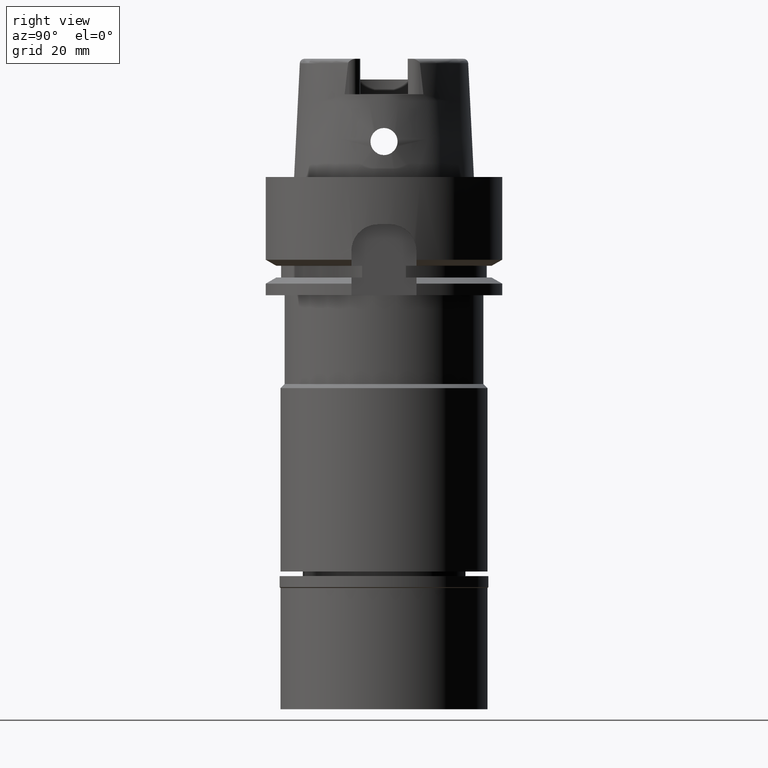
[diagram: clean part render]
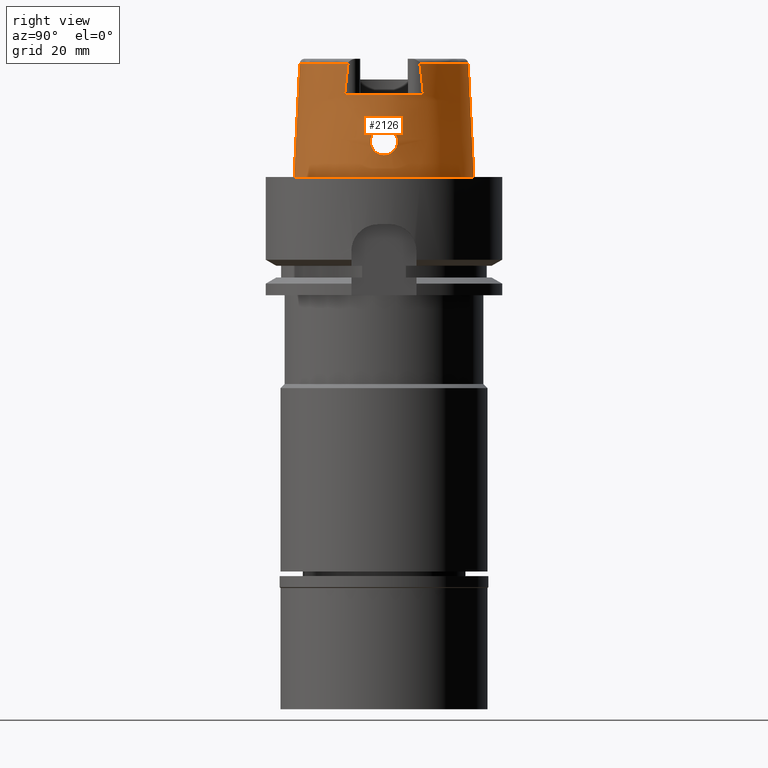
[diagram: same view with one face highlighted and labeled with its STEP entity id]
A machine part, right view. The second image highlights one B-rep face of the part: STEP entity #2126.
In plain terms, the highlighted conical surface has half-angle 2.862 deg.
Its self-contained STEP definition (entity closure, byte-faithful):
#4 = DIRECTION ( 'NONE',  ( 0.0000000000000000000, 0.0000000000000000000, 1.000000000000000000 ) ) ;
#14 = CARTESIAN_POINT ( 'NONE',  ( 14.95159781191035187, -1.187864067889359720, 4.029032692293940343 ) ) ;
#24 = CARTESIAN_POINT ( 'NONE',  ( 14.74751832821035613, 1.307916404317100989, 7.891956802519297653 ) ) ;
#29 = CARTESIAN_POINT ( 'NONE',  ( 14.81277615097072342, 2.042027729692651228, 4.940961349502483557 ) ) ;
#44 = DIRECTION ( 'NONE',  ( 0.0000000000000000000, 0.0000000000000000000, -1.000000000000000000 ) ) ;
#55 = CARTESIAN_POINT ( 'NONE',  ( 14.87689050640295996, 1.723620820242736773, 4.475252194871258027 ) ) ;
#66 = CARTESIAN_POINT ( 'NONE',  ( 14.91233845828381277, -1.506209392873531616, 4.253306372564925830 ) ) ;
#74 = B_SPLINE_CURVE_WITH_KNOTS ( 'NONE', 3,
 ( #244, #4493, #1905, #2389 ),
 .UNSPECIFIED., .F., .F.,
 ( 4, 4 ),
 ( 0.0000000000000000000, 1.000000000000000000 ),
 .UNSPECIFIED. ) ;
#87 = CARTESIAN_POINT ( 'NONE',  ( 14.72736680772677076, 1.656232558571158808, 7.595965254541103384 ) ) ;
#105 = AXIS2_PLACEMENT_3D ( 'NONE', #878, #44, #3081 ) ;
#116 = CARTESIAN_POINT ( 'NONE',  ( 0.0000000000000000000, -14.23797715755999782, 19.23995141520000018 ) ) ;
#137 = VERTEX_POINT ( 'NONE', #3080 ) ;
#190 = EDGE_CURVE ( 'NONE', #3862, #2989, #750, .T. ) ;
#244 = CARTESIAN_POINT ( 'NONE',  ( 12.88000642478999858, 6.068395837171999929, 19.23995141520000018 ) ) ;
#245 = LINE ( 'NONE', #3138, #1228 ) ;
#260 = CARTESIAN_POINT ( 'NONE',  ( 14.78454475432218551, -2.153043361746019180, 5.190607730115768703 ) ) ;
#285 = CARTESIAN_POINT ( 'NONE',  ( 14.70308859684086400, 2.132541063065697351, 6.861604285916752310 ) ) ;
#286 = CARTESIAN_POINT ( 'NONE',  ( 14.83222040200381464, -1.955479669527059983, 4.788852224059331419 ) ) ;
#310 = CARTESIAN_POINT ( 'NONE',  ( 14.70278127406560031, -2.228557303484552055, 6.588166007217148845 ) ) ;
#327 = DIRECTION ( 'NONE',  ( 0.9046212760392207120, -0.4262163147243098749, 0.0000000000000000000 ) ) ;
#338 = CARTESIAN_POINT ( 'NONE',  ( 14.74236931780755810, -1.402783291538963084, 7.824252342692303408 ) ) ;
#363 = CARTESIAN_POINT ( 'NONE',  ( 0.0000000000000000000, 15.20000663301000010, 0.0000000000000000000 ) ) ;
#366 = CARTESIAN_POINT ( 'NONE',  ( 14.97820405271757949, -0.9073709222876237268, 3.886532192602499158 ) ) ;
#383 = CARTESIAN_POINT ( 'NONE',  ( 14.77587679001949539, 2.186478945650338179, 5.267594666134984394 ) ) ;
#442 = CARTESIAN_POINT ( 'NONE',  ( 15.00367744364294964, 0.5085436132745476678, 3.755686639365965807 ) ) ;
#452 = ORIENTED_EDGE ( 'NONE', *, *, #4840, .F. ) ;
#461 = CARTESIAN_POINT ( 'NONE',  ( 14.74853616676068846, 1.288891261874556493, 7.904935887344001877 ) ) ;
#468 = CARTESIAN_POINT ( 'NONE',  ( 14.72502069329719987, 2.299243304022201340, 5.931213789070854503 ) ) ;
#497 = CARTESIAN_POINT ( 'NONE',  ( 14.72858124996356999, 1.635993355480040323, 7.616644405018121233 ) ) ;
#541 = VERTEX_POINT ( 'NONE', #644 ) ;
#552 = DIRECTION ( 'NONE',  ( 0.0000000000000000000, 1.000000000000000000, 0.0000000000000000000 ) ) ;
#640 = CARTESIAN_POINT ( 'NONE',  ( 12.88000000001000167, -6.659963896840999986, 14.00000000000000000 ) ) ;
#644 = CARTESIAN_POINT ( 'NONE',  ( 0.0000000000000000000, -15.20000663301000010, 1.136868377215999875E-13 ) ) ;
#649 = CARTESIAN_POINT ( 'NONE',  ( 14.77405847321146481, -0.6932189996478751448, 8.193394195744213349 ) ) ;
#673 = CARTESIAN_POINT ( 'NONE',  ( 14.73736555996772957, -1.490226321588004055, 7.752326996783448720 ) ) ;
#690 = AXIS2_PLACEMENT_3D ( 'NONE', #2854, #4917, #1244 ) ;
#699 = CARTESIAN_POINT ( 'NONE',  ( 14.70330673349290862, -2.122548192337450512, 6.885935675944041989 ) ) ;
#726 = CARTESIAN_POINT ( 'NONE',  ( 14.76160638078535214, -2.228446535680765450, 5.425422892990550139 ) ) ;
#748 = CARTESIAN_POINT ( 'NONE',  ( 14.82875256586594936, -1.971575649168873845, 4.815389322742110956 ) ) ;
#750 = LINE ( 'NONE', #3234, #2374 ) ;
#779 = CARTESIAN_POINT ( 'NONE',  ( 14.74945710056445769, -1.271558491804543056, 7.916566728944068210 ) ) ;
#801 = CARTESIAN_POINT ( 'NONE',  ( 14.80665070072230627, 2.067995376409636155, 4.992039432691788292 ) ) ;
#823 = CARTESIAN_POINT ( 'NONE',  ( 14.74812708442671294, 1.296547176084208663, 7.899733360241834035 ) ) ;
#829 = CARTESIAN_POINT ( 'NONE',  ( 14.70880299172023165, 2.286013724603620290, 6.294498830151221469 ) ) ;
#853 = EDGE_LOOP ( 'NONE', ( #1096, #452 ) ) ;
#856 = CARTESIAN_POINT ( 'NONE',  ( 15.00013898931886835, 0.5818394996962065191, 3.773510061688900130 ) ) ;
#878 = CARTESIAN_POINT ( 'NONE',  ( 0.0000000000000000000, 1.342457523729000028E-14, 9.619975707600000092 ) ) ;
#907 = CARTESIAN_POINT ( 'NONE',  ( 14.76642051090291829, 0.9082543105190635790, 8.113098558533105020 ) ) ;
#915 = CARTESIAN_POINT ( 'NONE',  ( 14.72817366909504422, 1.642780986028380408, 7.609758974836132062 ) ) ;
#965 = DIRECTION ( 'NONE',  ( 0.0000000000000000000, 0.0000000000000000000, -1.000000000000000000 ) ) ;
#991 = VERTEX_POINT ( 'NONE', #116 ) ;
#992 = CARTESIAN_POINT ( 'NONE',  ( 0.0000000000000000000, 1.459778984583999657E-14, 19.23995141520000018 ) ) ;
#1022 = EDGE_CURVE ( 'NONE', #137, #1546, #2186, .T. ) ;
#1088 = CARTESIAN_POINT ( 'NONE',  ( 14.75001193500613716, -1.261041565009231036, 7.923510389929881548 ) ) ;
#1096 = ORIENTED_EDGE ( 'NONE', *, *, #2726, .F. ) ;
#1113 = CARTESIAN_POINT ( 'NONE',  ( 14.72949314430344181, -1.621130342554049975, 7.631578534187770657 ) ) ;
#1139 = CARTESIAN_POINT ( 'NONE',  ( 14.87734879225924622, -1.718973516896574072, 4.471067207144236555 ) ) ;
#1159 = ORIENTED_EDGE ( 'NONE', *, *, #1802, .T. ) ;
#1165 = CARTESIAN_POINT ( 'NONE',  ( 14.71779217174672638, -2.299087024094990550, 6.074411375512898559 ) ) ;
#1190 = CARTESIAN_POINT ( 'NONE',  ( 14.73069332387527197, -1.601752197339136874, 7.650599564671837882 ) ) ;
#1210 = CARTESIAN_POINT ( 'NONE',  ( 14.91331261863802915, 1.490111987784595415, 4.247452989465248407 ) ) ;
#1228 = VECTOR ( 'NONE', #3492, 1000.000000000000227 ) ;
#1229 = CARTESIAN_POINT ( 'NONE',  ( 12.88000642478999858, 6.068395837171999929, 19.23995141520000018 ) ) ;
#1236 = CARTESIAN_POINT ( 'NONE',  ( 14.76441233825287647, 0.9572221686004802610, 8.091416330804094059 ) ) ;
#1242 = CARTESIAN_POINT ( 'NONE',  ( 14.98380681107930279, 0.8363154628546727309, 3.857415049180454858 ) ) ;
#1244 = DIRECTION ( 'NONE',  ( 0.8882768779220027167, 0.4593083802296007434, 0.0000000000000000000 ) ) ;
#1269 = CARTESIAN_POINT ( 'NONE',  ( 14.71340754095104764, 1.895742809558945696, 7.304524220201870754 ) ) ;
#1307 = AXIS2_PLACEMENT_3D ( 'NONE', #5102, #4, #1656 ) ;
#1309 = CARTESIAN_POINT ( 'NONE',  ( 15.01500049748000620, -0.2871287506931364253, 3.699999999999998845 ) ) ;
#1329 = CARTESIAN_POINT ( 'NONE',  ( 14.98158108246924769, 0.8653348438459183001, 3.868978528466840761 ) ) ;
#1350 = CARTESIAN_POINT ( 'NONE',  ( 14.74146935868266084, 1.418211373030696221, 7.810931412595422785 ) ) ;
#1359 = CARTESIAN_POINT ( 'NONE',  ( 14.72039008570684615, 1.773838159947741744, 7.464641027593489575 ) ) ;
#1410 = ORIENTED_EDGE ( 'NONE', *, *, #3469, .T. ) ;
#1482 = CIRCLE ( 'NONE', #1307, 15.20000663301000010 ) ;
#1505 = CARTESIAN_POINT ( 'NONE',  ( 14.73486358018056919, -1.533062476184660072, 7.715287958186024753 ) ) ;
#1509 = AXIS2_PLACEMENT_3D ( 'NONE', #992, #965, #552 ) ;
#1532 = CARTESIAN_POINT ( 'NONE',  ( 14.70935409292397367, -2.282297410087690714, 6.294200053182678722 ) ) ;
#1546 = VERTEX_POINT ( 'NONE', #2807 ) ;
#1547 = DIRECTION ( 'NONE',  ( 0.0000000000000000000, 0.0000000000000000000, -1.000000000000000000 ) ) ;
#1555 = CARTESIAN_POINT ( 'NONE',  ( 14.99376977153552915, 0.6912980481391540755, 3.806018306630426284 ) ) ;
#1556 = CARTESIAN_POINT ( 'NONE',  ( 14.85788908783029605, -1.827877025819850232, 4.601933192779965154 ) ) ;
#1583 = CARTESIAN_POINT ( 'NONE',  ( 14.75372239674802977, -1.188815812010178163, 7.969044752825855227 ) ) ;
#1611 = CARTESIAN_POINT ( 'NONE',  ( 14.72153735385490236, -1.748226725545042548, 7.504128024354805859 ) ) ;
#1656 = DIRECTION ( 'NONE',  ( 0.0000000000000000000, -1.000000000000000000, 0.0000000000000000000 ) ) ;
#1665 = CARTESIAN_POINT ( 'NONE',  ( 14.97944125101479962, -0.8921746527740900268, 3.880072512450924549 ) ) ;
#1679 = CARTESIAN_POINT ( 'NONE',  ( 14.74613196803109894, 1.333648486405971889, 7.874014545323412051 ) ) ;
#1687 = CARTESIAN_POINT ( 'NONE',  ( 14.98583036464588325, 0.8092569102176475626, 3.846919130171225998 ) ) ;
#1692 = EDGE_CURVE ( 'NONE', #1546, #991, #5300, .T. ) ;
#1697 = CARTESIAN_POINT ( 'NONE',  ( 15.01500049747999910, 0.0000000000000000000, 3.700000000000000178 ) ) ;
#1713 = CARTESIAN_POINT ( 'NONE',  ( 15.01216973402073762, 0.2889093150147514777, 3.713350119281751738 ) ) ;
#1741 = CARTESIAN_POINT ( 'NONE',  ( 14.83355990642575151, 1.949053821829503708, 4.776618348241496115 ) ) ;
#1751 = CARTESIAN_POINT ( 'NONE',  ( 15.00354984539767322, -0.5879194841293168272, 3.754523910294303324 ) ) ;
#1764 = CARTESIAN_POINT ( 'NONE',  ( 14.76685564974483533, 0.8972882147890098858, 8.117755752641397038 ) ) ;
#1772 = CARTESIAN_POINT ( 'NONE',  ( 14.72887405899188629, 1.631119956312548025, 7.621557771143972815 ) ) ;
#1802 = EDGE_CURVE ( 'NONE', #3862, #2306, #3181, .T. ) ;
#1804 = ORIENTED_EDGE ( 'NONE', *, *, #3909, .T. ) ;
#1818 = ORIENTED_EDGE ( 'NONE', *, *, #1961, .T. ) ;
#1830 = VERTEX_POINT ( 'NONE', #5157 ) ;
#1840 = CARTESIAN_POINT ( 'NONE',  ( 14.78353495001219464, -0.2839901100707556969, 8.287368063086679726 ) ) ;
#1871 = CARTESIAN_POINT ( 'NONE',  ( 15.01500049747999910, 0.0000000000000000000, 3.700000000000000178 ) ) ;
#1905 = CARTESIAN_POINT ( 'NONE',  ( 12.88001670702532486, 6.461541541087054696, 15.82237501699527904 ) ) ;
#1922 = CARTESIAN_POINT ( 'NONE',  ( 14.71959376989578061, -2.299974521213192791, 6.035933924429983222 ) ) ;
#1954 = CARTESIAN_POINT ( 'NONE',  ( 14.79809721017969970, -2.102711761455683170, 5.065839075425421001 ) ) ;
#1961 = EDGE_CURVE ( 'NONE', #2306, #4156, #74, .T. ) ;
#1977 = CARTESIAN_POINT ( 'NONE',  ( 14.97223539196251707, 0.9839929119239221311, 3.917615453083567179 ) ) ;
#1978 = CARTESIAN_POINT ( 'NONE',  ( 14.83580892831244213, -1.938393915680545421, 4.761959704945465610 ) ) ;
#2001 = CARTESIAN_POINT ( 'NONE',  ( 14.72985924655684364, -1.615240559001779763, 7.637402504313230089 ) ) ;
#2030 = CARTESIAN_POINT ( 'NONE',  ( 14.70353454613429101, -2.113388270241584710, 6.907556622532162294 ) ) ;
#2071 = CARTESIAN_POINT ( 'NONE',  ( 14.70318061717213709, 2.128127486359741027, 6.872428827122357475 ) ) ;
#2079 = CARTESIAN_POINT ( 'NONE',  ( 14.89037633737181565, -1.641091913029274707, 4.388507899635789578 ) ) ;
#2099 = CARTESIAN_POINT ( 'NONE',  ( 14.88546964351503199, 1.672501550665707271, 4.419347234762968313 ) ) ;
#2108 = CARTESIAN_POINT ( 'NONE',  ( 14.96739925460966525, -1.030588670757251357, 3.943514719977009975 ) ) ;
#2120 = CARTESIAN_POINT ( 'NONE',  ( 14.74882774769819882, 1.283419938159608087, 7.908622783263433931 ) ) ;
#2126 = ADVANCED_FACE ( 'NONE', ( #3848, #4326 ), #2469, .T. ) ;
#2130 = CARTESIAN_POINT ( 'NONE',  ( 14.89898486874967176, 1.586769968314259316, 4.334982118419299368 ) ) ;
#2152 = CARTESIAN_POINT ( 'NONE',  ( 14.72321557365133593, 2.300011326135644296, 5.964289681596360637 ) ) ;
#2161 = CARTESIAN_POINT ( 'NONE',  ( 14.89131456766338424, -1.635366561423474252, 4.382689932100723773 ) ) ;
#2170 = EDGE_LOOP ( 'NONE', ( #3736, #5301, #1804, #2668, #4938, #1159, #1818, #1410 ) ) ;
#2173 = CARTESIAN_POINT ( 'NONE',  ( 14.76714247374605371, 0.8900169135928871489, 8.120821883554476983 ) ) ;
#2181 = CARTESIAN_POINT ( 'NONE',  ( 14.72899528445914896, 1.629103054710999920, 7.623583457873813529 ) ) ;
#2186 = B_SPLINE_CURVE_WITH_KNOTS ( 'NONE', 3,
 ( #640, #4751, #2235, #2312 ),
 .UNSPECIFIED., .F., .F.,
 ( 4, 4 ),
 ( 0.0000000000000000000, 1.000000000000000000 ),
 .UNSPECIFIED. ) ;
#2235 = CARTESIAN_POINT ( 'NONE',  ( 12.87998480906792231, -6.264498791881766060, 17.56875189347443467 ) ) ;
#2306 = VERTEX_POINT ( 'NONE', #1229 ) ;
#2312 = CARTESIAN_POINT ( 'NONE',  ( 12.87999235482999794, -6.068467390490999591, 19.23976282670000160 ) ) ;
#2321 = CARTESIAN_POINT ( 'NONE',  ( 14.77228163381133719, -0.7495660700917883279, 8.175071908086145811 ) ) ;
#2348 = CARTESIAN_POINT ( 'NONE',  ( 14.76763779849073011, -0.8773527995547368841, 8.126092011479387978 ) ) ;
#2374 = VECTOR ( 'NONE', #3671, 1000.000000000000227 ) ;
#2375 = CARTESIAN_POINT ( 'NONE',  ( 14.70330494621231310, 2.224522370447009845, 6.589338689569594010 ) ) ;
#2376 = CARTESIAN_POINT ( 'NONE',  ( 14.82197781381792545, -2.002512396162962727, 4.867923990409698476 ) ) ;
#2389 = CARTESIAN_POINT ( 'NONE',  ( 12.88000000001000167, 6.659963896840999986, 14.00000000000000000 ) ) ;
#2401 = CARTESIAN_POINT ( 'NONE',  ( 14.72824766916687445, -2.300098885217962685, 5.864612257955919006 ) ) ;
#2424 = CARTESIAN_POINT ( 'NONE',  ( 14.70541249631440373, -2.056173621691748554, 7.031210576314717464 ) ) ;
#2453 = CARTESIAN_POINT ( 'NONE',  ( 14.70744202753588858, -2.007269269526447353, 7.125100413559565027 ) ) ;
#2469 = CONICAL_SURFACE ( 'NONE', #105, 14.71899189528999941, 0.04996004983832824653 ) ;
#2474 = CARTESIAN_POINT ( 'NONE',  ( 14.91783195775908055, 1.457720642843634451, 4.220463533993310534 ) ) ;
#2500 = CARTESIAN_POINT ( 'NONE',  ( 14.70429935291649670, 2.078340243811617416, 6.992732551594979640 ) ) ;
#2520 = CARTESIAN_POINT ( 'NONE',  ( 14.76724138996332059, 0.8875007862261394820, 8.121878463802751469 ) ) ;
#2530 = CARTESIAN_POINT ( 'NONE',  ( 14.70255809053433182, 2.173663127328616884, 6.753509407155230626 ) ) ;
#2551 = CARTESIAN_POINT ( 'NONE',  ( 14.74500206672123781, 1.354361789306116393, 7.859025274793162374 ) ) ;
#2555 = AXIS2_PLACEMENT_3D ( 'NONE', #3175, #1547, #327 ) ;
#2559 = CARTESIAN_POINT ( 'NONE',  ( 14.99031977856956033, 0.7459051346538461136, 3.823714766512996910 ) ) ;
#2578 = CARTESIAN_POINT ( 'NONE',  ( 14.73772851897967051, 1.484207111991292072, 7.757928772046327914 ) ) ;
#2586 = CARTESIAN_POINT ( 'NONE',  ( 14.72899154001481037, 1.629165348209785424, 7.623520947876661680 ) ) ;
#2593 = CARTESIAN_POINT ( 'NONE',  ( 14.88820275661114323, -1.654289864141546884, 4.402059293357578618 ) ) ;
#2642 = VERTEX_POINT ( 'NONE', #1871 ) ;
#2653 = CARTESIAN_POINT ( 'NONE',  ( 14.78499286952000169, -0.1390346422448712205, 8.300000000000002487 ) ) ;
#2668 = ORIENTED_EDGE ( 'NONE', *, *, #2704, .T. ) ;
#2704 = EDGE_CURVE ( 'NONE', #541, #2989, #1482, .T. ) ;
#2726 = EDGE_CURVE ( 'NONE', #2642, #1830, #4758, .T. ) ;
#2742 = CARTESIAN_POINT ( 'NONE',  ( 14.77916119148878238, -0.5059808159058578614, 8.244918522707889608 ) ) ;
#2768 = CARTESIAN_POINT ( 'NONE',  ( 14.78755701455979477, -2.142070933123758625, 5.162363661827093608 ) ) ;
#2793 = CARTESIAN_POINT ( 'NONE',  ( 14.75514735598933491, -2.246245530244911137, 5.499999097871387299 ) ) ;
#2807 = CARTESIAN_POINT ( 'NONE',  ( 12.87999235482999794, -6.068467390490999591, 19.23976282670000160 ) ) ;
#2816 = CARTESIAN_POINT ( 'NONE',  ( 14.83822809922280683, -1.926778122157195794, 4.743958275970711291 ) ) ;
#2841 = CARTESIAN_POINT ( 'NONE',  ( 14.75798617273542490, -1.101452471891670282, 8.019461671074509468 ) ) ;
#2854 = CARTESIAN_POINT ( 'NONE',  ( 0.0000000000000000000, 1.342457523729000028E-14, 14.00000000000000000 ) ) ;
#2867 = CARTESIAN_POINT ( 'NONE',  ( 14.70379910513145028, -2.103470269027626127, 6.930539206622420068 ) ) ;
#2887 = CARTESIAN_POINT ( 'NONE',  ( 14.85070685811105307, 1.866402303876733004, 4.653888598097771556 ) ) ;
#2913 = CARTESIAN_POINT ( 'NONE',  ( 14.78499286952000347, 0.2785772059782061216, 8.300000000000004263 ) ) ;
#2919 = CARTESIAN_POINT ( 'NONE',  ( 14.70295626629549623, 2.139703767922909172, 6.843659360588138618 ) ) ;
#2944 = CARTESIAN_POINT ( 'NONE',  ( 14.90626587690420735, 1.538535333622815360, 4.290212668995776468 ) ) ;
#2975 = CARTESIAN_POINT ( 'NONE',  ( 14.76155486097469449, 2.230851279048172930, 5.420146973557837811 ) ) ;
#2989 = VERTEX_POINT ( 'NONE', #363 ) ;
#3010 = CARTESIAN_POINT ( 'NONE',  ( 14.72912714456582428, 2.296040461768006136, 5.860538493378713021 ) ) ;
#3029 = CARTESIAN_POINT ( 'NONE',  ( 14.78499286951999991, -6.884507511411997731E-14, 8.300000000000000711 ) ) ;
#3036 = CARTESIAN_POINT ( 'NONE',  ( 14.72875681680386428, 1.633071088884591626, 7.619592768472294608 ) ) ;
#3080 = CARTESIAN_POINT ( 'NONE',  ( 12.88000000001000167, -6.659963896840999986, 14.00000000000000000 ) ) ;
#3081 = DIRECTION ( 'NONE',  ( 0.0000000000000000000, -1.000000000000000000, 0.0000000000000000000 ) ) ;
#3138 = CARTESIAN_POINT ( 'NONE',  ( 0.0000000000000000000, -14.23797715755999782, 19.23995141520000018 ) ) ;
#3175 = CARTESIAN_POINT ( 'NONE',  ( 0.0000000000000000000, 1.459778984583999657E-14, 19.23995141520000018 ) ) ;
#3181 = CIRCLE ( 'NONE', #1509, 14.23797715755999782 ) ;
#3186 = CARTESIAN_POINT ( 'NONE',  ( 14.70730606536179863, -2.271634381914195533, 6.367802884226502869 ) ) ;
#3205 = CARTESIAN_POINT ( 'NONE',  ( 14.71564347146195573, -1.847804553820137752, 7.377784150090652915 ) ) ;
#3228 = CARTESIAN_POINT ( 'NONE',  ( 14.93882225505085515, 1.296112023564907068, 4.098492430789756114 ) ) ;
#3229 = CARTESIAN_POINT ( 'NONE',  ( 14.77219415750567855, -2.195324595902393039, 5.312920585232150827 ) ) ;
#3234 = CARTESIAN_POINT ( 'NONE',  ( 0.0000000000000000000, 14.23797715755999782, 19.23995141520000018 ) ) ;
#3256 = CARTESIAN_POINT ( 'NONE',  ( 14.70919352844575911, -1.970693411085873592, 7.188290868366238762 ) ) ;
#3276 = CARTESIAN_POINT ( 'NONE',  ( 14.76821967643265232, -0.8622035868760629107, 8.132282952270406540 ) ) ;
#3324 = CARTESIAN_POINT ( 'NONE',  ( 15.01500049748000443, 0.1428645564732077822, 3.700000000000000178 ) ) ;
#3348 = CARTESIAN_POINT ( 'NONE',  ( 14.76098190591237191, 1.036408135029145638, 8.053602097202293919 ) ) ;
#3354 = CARTESIAN_POINT ( 'NONE',  ( 14.70267105431568133, 2.191566203081938724, 6.698922416595515017 ) ) ;
#3382 = CARTESIAN_POINT ( 'NONE',  ( 14.79473802212328160, 2.115256652901250423, 5.096610354832854739 ) ) ;
#3391 = CARTESIAN_POINT ( 'NONE',  ( 14.92957349338001194, -1.378452510460746350, 4.152623112702926278 ) ) ;
#3415 = CARTESIAN_POINT ( 'NONE',  ( 14.82514891412099800, 1.987953961328903896, 4.840776339112235149 ) ) ;
#3434 = CARTESIAN_POINT ( 'NONE',  ( 14.76241683520150083, 1.004035209737936141, 8.069565049198388351 ) ) ;
#3440 = CARTESIAN_POINT ( 'NONE',  ( 14.72275804984165859, 1.733513270563004971, 7.512657437547620276 ) ) ;
#3469 = EDGE_CURVE ( 'NONE', #4156, #137, #4306, .T. ) ;
#3492 = DIRECTION ( 'NONE',  ( 0.0000000000000000000, -0.04993926899656212642, -0.9987522562738413434 ) ) ;
#3508 = CARTESIAN_POINT ( 'NONE',  ( 14.78499286951999991, -6.884507511411997731E-14, 8.300000000000000711 ) ) ;
#3588 = CARTESIAN_POINT ( 'NONE',  ( 14.75096406798681059, -1.242812650638140282, 7.935338410785809593 ) ) ;
#3616 = CARTESIAN_POINT ( 'NONE',  ( 14.80541373048166420, -2.073811860073035085, 5.002507251742100536 ) ) ;
#3641 = CARTESIAN_POINT ( 'NONE',  ( 14.93085450901773292, 1.360657936284384251, 4.143818972700538339 ) ) ;
#3642 = CARTESIAN_POINT ( 'NONE',  ( 14.83961419960148120, -1.920061337968897330, 4.733724392170651996 ) ) ;
#3667 = CARTESIAN_POINT ( 'NONE',  ( 14.71323577996237830, -2.292914406950467221, 6.184125791907077563 ) ) ;
#3671 = DIRECTION ( 'NONE',  ( 0.0000000000000000000, 0.04993926899656212642, -0.9987522562738413434 ) ) ;
#3696 = CARTESIAN_POINT ( 'NONE',  ( 14.88494373444930297, -1.673961407728789208, 4.422508496978726278 ) ) ;
#3736 = ORIENTED_EDGE ( 'NONE', *, *, #1022, .T. ) ;
#3740 = CARTESIAN_POINT ( 'NONE',  ( 14.98243566002871852, 0.8543322368514190135, 3.864535119941170827 ) ) ;
#3751 = CARTESIAN_POINT ( 'NONE',  ( 14.95830121240146759, -1.124474588450421475, 3.992380573687578593 ) ) ;
#3763 = CARTESIAN_POINT ( 'NONE',  ( 14.75286591417289728, 1.207535211317185997, 7.959517585093020209 ) ) ;
#3803 = CARTESIAN_POINT ( 'NONE',  ( 14.90267557277423727, 1.562705741451802632, 4.312161193900186262 ) ) ;
#3837 = CARTESIAN_POINT ( 'NONE',  ( 14.97993287547786245, -0.8860733461274853395, 3.877508646661071978 ) ) ;
#3848 = FACE_OUTER_BOUND ( 'NONE', #2170, .T. ) ;
#3857 = CARTESIAN_POINT ( 'NONE',  ( 14.73066033777437056, 1.603127183154393398, 7.650953847107430761 ) ) ;
#3862 = VERTEX_POINT ( 'NONE', #4387 ) ;
#3876 = CARTESIAN_POINT ( 'NONE',  ( 14.75636333628038521, 1.136603006297001617, 8.000956568751460551 ) ) ;
#3909 = EDGE_CURVE ( 'NONE', #991, #541, #245, .T. ) ;
#4031 = CARTESIAN_POINT ( 'NONE',  ( 14.71466461659102443, -2.295557711173062287, 6.147488954981620068 ) ) ;
#4060 = CARTESIAN_POINT ( 'NONE',  ( 14.73840912674189596, 2.283631429915606859, 5.716681378051133855 ) ) ;
#4061 = CARTESIAN_POINT ( 'NONE',  ( 14.76260058459468105, -1.001226412230063811, 8.072012940730376229 ) ) ;
#4082 = CARTESIAN_POINT ( 'NONE',  ( 14.78958392220834739, -2.134613141795620006, 5.143536776951375344 ) ) ;
#4108 = CARTESIAN_POINT ( 'NONE',  ( 14.87085502956068517, -1.755997229910595037, 4.514097905887158646 ) ) ;
#4139 = CARTESIAN_POINT ( 'NONE',  ( 14.73194442724450148, -1.581397845210991582, 7.670270657002334680 ) ) ;
#4156 = VERTEX_POINT ( 'NONE', #5096 ) ;
#4160 = CARTESIAN_POINT ( 'NONE',  ( 14.73133309586282991, 2.293605021918840858, 5.824824400274982494 ) ) ;
#4182 = CARTESIAN_POINT ( 'NONE',  ( 14.70697124783491105, 2.017175027640421892, 7.115124151032011568 ) ) ;
#4206 = CARTESIAN_POINT ( 'NONE',  ( 14.73564996746377176, 1.519598872248284938, 7.726915055850627212 ) ) ;
#4215 = CARTESIAN_POINT ( 'NONE',  ( 14.71595771377951856, 1.850319022189710783, 7.368583262249874366 ) ) ;
#4234 = B_SPLINE_CURVE_WITH_KNOTS ( 'NONE', 3,
 ( #3508, #2653, #1840, #2742, #4427, #649, #2321, #4452, #4972, #3276, #5362, #2348, #4507, #4061, #2841, #5314, #1583, #4871, #3588, #1088, #779, #4925, #338, #673, #1505, #4139, #1190, #2001, #1113, #1611, #3205, #3256, #2453, #2424, #4951, #2867, #2030, #4896, #699, #4556, #310, #3186, #1532, #3667, #4031, #1165, #1922, #2401, #5282, #2793, #726, #3229, #5388, #260, #2768, #4082, #4526, #1954, #3616, #4480, #2376, #748, #286, #1978, #2816, #3642, #5334, #1556, #4108, #1139, #3696, #2593, #2079, #2161, #66, #3391, #14, #3751, #2108, #5438, #5082, #366, #1665, #3837, #1751, #1309, #1697 ),
 .UNSPECIFIED., .F., .F.,
 ( 4, 2, 2, 1, 1, 1, 2, 2, 2, 2, 1, 2, 2, 2, 1, 1, 2, 2, 2, 2, 1, 1, 2, 2, 2, 2, 2, 2, 2, 2, 1, 1, 2, 2, 2, 2, 1, 2, 2, 2, 1, 1, 2, 2, 2, 2, 1, 1, 2, 2, 4 ),
 ( 0.0000000000000000000, 0.06249999999999039657, 0.09374999999998562261, 0.1093749999999833328, 0.1171874999999823058, 0.1210937499999818062, 0.1230468749999817230, 0.1249999999999816258, 0.1562499999999803491, 0.1718749999999795164, 0.1796874999999792666, 0.1835937499999789613, 0.1874999999999786282, 0.2187499999999765743, 0.2343749999999753253, 0.2421874999999745759, 0.2460937499999743261, 0.2499999999999740208, 0.3124999999999713562, 0.3437499999999699130, 0.3593749999999690803, 0.3671874999999685252, 0.3710937499999684142, 0.3749999999999683031, 0.4374999999999697464, 0.4687499999999702460, 0.4843749999999705236, 0.4999999999999708011, 0.5624999999999725775, 0.5937499999999736877, 0.6093749999999741318, 0.6171874999999744649, 0.6210937499999745759, 0.6249999999999747979, 0.6562499999999766853, 0.6718749999999777955, 0.6796874999999782396, 0.6835937499999785727, 0.6874999999999787947, 0.7187499999999826805, 0.7343749999999847899, 0.7421874999999856781, 0.7460937499999860112, 0.7499999999999864553, 0.8124999999999891198, 0.8437499999999904521, 0.8593749999999911182, 0.8671874999999914513, 0.8710937499999915623, 0.8749999999999917843, 1.000000000000000000 ),
 .UNSPECIFIED. ) ;
#4247 = CARTESIAN_POINT ( 'NONE',  ( 15.01500049747999910, 0.0000000000000000000, 3.700000000000000178 ) ) ;
#4264 = CARTESIAN_POINT ( 'NONE',  ( 14.77913671131573103, 0.5822719926634731813, 8.248751823060548105 ) ) ;
#4273 = CARTESIAN_POINT ( 'NONE',  ( 14.72899159762164700, 1.629164389848265726, 7.623521909568924393 ) ) ;
#4306 = CIRCLE ( 'NONE', #690, 14.49998341749000730 ) ;
#4326 = FACE_BOUND ( 'NONE', #853, .T. ) ;
#4387 = CARTESIAN_POINT ( 'NONE',  ( 0.0000000000000000000, 14.23797715755999782, 19.23995141520000018 ) ) ;
#4427 = CARTESIAN_POINT ( 'NONE',  ( 14.77733879210402712, -0.5807183212793223248, 8.226856292830618145 ) ) ;
#4452 = CARTESIAN_POINT ( 'NONE',  ( 14.76996946459192372, -0.8152970715742309249, 8.150813611821932980 ) ) ;
#4480 = CARTESIAN_POINT ( 'NONE',  ( 14.81767587275616549, -2.021463385847339644, 4.902226055542271865 ) ) ;
#4493 = CARTESIAN_POINT ( 'NONE',  ( 12.88000426024910894, 6.264427327224677988, 17.56902551175396354 ) ) ;
#4507 = CARTESIAN_POINT ( 'NONE',  ( 14.76525842639618347, -0.9385285394944591353, 8.100725893182909587 ) ) ;
#4526 = CARTESIAN_POINT ( 'NONE',  ( 14.79083164620614887, -2.129969082955828430, 5.132074289014735058 ) ) ;
#4556 = CARTESIAN_POINT ( 'NONE',  ( 14.70192380172187008, -2.185011798853906395, 6.734502021409866757 ) ) ;
#4575 = CARTESIAN_POINT ( 'NONE',  ( 14.85960635341131031, 1.820102559466061587, 4.591826972902742554 ) ) ;
#4600 = CARTESIAN_POINT ( 'NONE',  ( 14.74282014065517465, 1.394056622715814209, 7.829669217993021846 ) ) ;
#4605 = CARTESIAN_POINT ( 'NONE',  ( 14.79661425573394418, 2.108005297805854106, 5.079843792895556653 ) ) ;
#4662 = CARTESIAN_POINT ( 'NONE',  ( 14.70278326824831971, 2.150268320529696187, 6.816699115276790621 ) ) ;
#4685 = CARTESIAN_POINT ( 'NONE',  ( 14.76537086705797819, 0.9342515672654817527, 8.101818515548497857 ) ) ;
#4692 = CARTESIAN_POINT ( 'NONE',  ( 14.89505036595938847, 1.612033816254026863, 4.359440210736680754 ) ) ;
#4751 = CARTESIAN_POINT ( 'NONE',  ( 12.87999628661343365, -6.461605126965134005, 15.82216438878562492 ) ) ;
#4758 = B_SPLINE_CURVE_WITH_KNOTS ( 'NONE', 3,
 ( #4247, #3324, #1713, #442, #856, #1555, #2559, #1687, #1242, #3740, #1329, #1977, #4989, #3228, #3641, #2474, #1210, #2944, #3803, #2130, #5072, #4692, #2099, #55, #4575, #2887, #1741, #3415, #29, #801, #5048, #4605, #3382, #383, #2975, #5333, #4060, #4160, #3010, #468, #2152, #5428, #829, #5018, #2375, #3354, #2530, #4662, #2919, #285, #2071, #2500, #4182, #1269, #4215, #1359, #3440, #5134, #87, #915, #497, #3036, #1772, #2586, #4273, #2181, #3857, #4206, #2578, #1350, #4600, #2551, #1679, #24, #823, #461, #2120, #3763, #3876, #3348, #3434, #1236, #4685, #907, #1764, #2173, #2520, #4264, #2913, #3029 ),
 .UNSPECIFIED., .F., .F.,
 ( 4, 2, 2, 1, 1, 2, 2, 2, 2, 2, 1, 2, 2, 2, 2, 2, 1, 2, 2, 2, 2, 2, 2, 2, 2, 1, 1, 2, 2, 2, 2, 1, 1, 1, 1, 1, 2, 3, 2, 2, 2, 1, 1, 2, 2, 2, 2, 1, 1, 2, 2, 4 ),
 ( 0.0000000000000000000, 0.04999999999999572148, 0.07499999999999359956, 0.08749999999999258371, 0.09374999999999208966, 0.09687499999999187039, 0.09999999999999163725, 0.1499999999999885036, 0.1749999999999869438, 0.1874999999999862332, 0.1937499999999859335, 0.1968749999999858669, 0.1999999999999858280, 0.2249999999999858502, 0.2499999999999859002, 0.2749999999999858669, 0.2874999999999858780, 0.2937499999999858558, 0.2999999999999858891, 0.3499999999999861000, 0.3749999999999860112, 0.3874999999999860223, 0.3999999999999860334, 0.4499999999999864664, 0.4749999999999867106, 0.4874999999999868883, 0.4937499999999868106, 0.4968749999999867994, 0.4999999999999867883, 0.5499999999999837241, 0.5749999999999821920, 0.5874999999999812594, 0.5937499999999809042, 0.5968749999999807265, 0.5984374999999807487, 0.5992187499999808153, 0.5996093749999807931, 0.5999999999999808820, 0.6499999999999765965, 0.6749999999999743983, 0.6874999999999733546, 0.6937499999999727773, 0.6968749999999724887, 0.6984374999999725109, 0.6999999999999724221, 0.7499999999999764633, 0.7749999999999785949, 0.7874999999999796607, 0.7937499999999801936, 0.7968749999999805711, 0.7999999999999809486, 1.000000000000000000 ),
 .UNSPECIFIED. ) ;
#4840 = EDGE_CURVE ( 'NONE', #1830, #2642, #4234, .T. ) ;
#4871 = CARTESIAN_POINT ( 'NONE',  ( 14.75237265342165749, -1.215601376677669654, 7.952719380579342356 ) ) ;
#4896 = CARTESIAN_POINT ( 'NONE',  ( 14.70337062597251077, -2.119888654264080241, 6.892267391211364114 ) ) ;
#4917 = DIRECTION ( 'NONE',  ( 0.0000000000000000000, 0.0000000000000000000, -1.000000000000000000 ) ) ;
#4925 = CARTESIAN_POINT ( 'NONE',  ( 14.74570488738810425, -1.342125651359979521, 7.869330443982761381 ) ) ;
#4938 = ORIENTED_EDGE ( 'NONE', *, *, #190, .F. ) ;
#4951 = CARTESIAN_POINT ( 'NONE',  ( 14.70454716073947843, -2.079137259777542823, 6.984486871757167314 ) ) ;
#4972 = CARTESIAN_POINT ( 'NONE',  ( 14.76875358250240566, -0.8481372237910014267, 8.137952726061421060 ) ) ;
#4989 = CARTESIAN_POINT ( 'NONE',  ( 14.96058362873222336, 1.105948793089378324, 3.977766848101428998 ) ) ;
#5018 = CARTESIAN_POINT ( 'NONE',  ( 14.70427149325534089, 2.242690639650270601, 6.515738085014285197 ) ) ;
#5048 = CARTESIAN_POINT ( 'NONE',  ( 14.80061664746394356, 2.092239156272774014, 5.044537235676148867 ) ) ;
#5072 = CARTESIAN_POINT ( 'NONE',  ( 14.89650208831227651, 1.602784050711321573, 4.350391935909343033 ) ) ;
#5082 = CARTESIAN_POINT ( 'NONE',  ( 14.97631834719273236, -0.9302243737885050878, 3.896391726744723449 ) ) ;
#5096 = CARTESIAN_POINT ( 'NONE',  ( 12.88000000001000167, 6.659963896840999986, 14.00000000000000000 ) ) ;
#5102 = CARTESIAN_POINT ( 'NONE',  ( 0.0000000000000000000, 1.342457523729000028E-14, 0.0000000000000000000 ) ) ;
#5134 = CARTESIAN_POINT ( 'NONE',  ( 14.72578628646514787, 1.682643211131848116, 7.568292736303861012 ) ) ;
#5157 = CARTESIAN_POINT ( 'NONE',  ( 14.78499286951999991, -6.884507511411997731E-14, 8.300000000000000711 ) ) ;
#5282 = CARTESIAN_POINT ( 'NONE',  ( 14.73756876065380794, -2.287933163273538906, 5.720999323492218736 ) ) ;
#5300 = CIRCLE ( 'NONE', #2555, 14.23797715756000315 ) ;
#5301 = ORIENTED_EDGE ( 'NONE', *, *, #1692, .T. ) ;
#5314 = CARTESIAN_POINT ( 'NONE',  ( 14.75634342725616222, -1.135884656848567431, 8.000361752384261393 ) ) ;
#5333 = CARTESIAN_POINT ( 'NONE',  ( 14.74373738331202865, 2.273424367709606653, 5.643246044618384083 ) ) ;
#5334 = CARTESIAN_POINT ( 'NONE',  ( 14.84927390489903942, -1.872904874075993709, 4.662856570281970647 ) ) ;
#5362 = CARTESIAN_POINT ( 'NONE',  ( 14.76786089155378257, -0.8715790992373968482, 8.128467873268817812 ) ) ;
#5388 = CARTESIAN_POINT ( 'NONE',  ( 14.77771285574741178, -2.177158656721810193, 5.256512026132596382 ) ) ;
#5428 = CARTESIAN_POINT ( 'NONE',  ( 14.71399980047790201, 2.299954128559182021, 6.146452181982110297 ) ) ;
#5438 = CARTESIAN_POINT ( 'NONE',  ( 14.97170901108163221, -0.9839421733143546289, 3.920608561078712029 ) ) ;